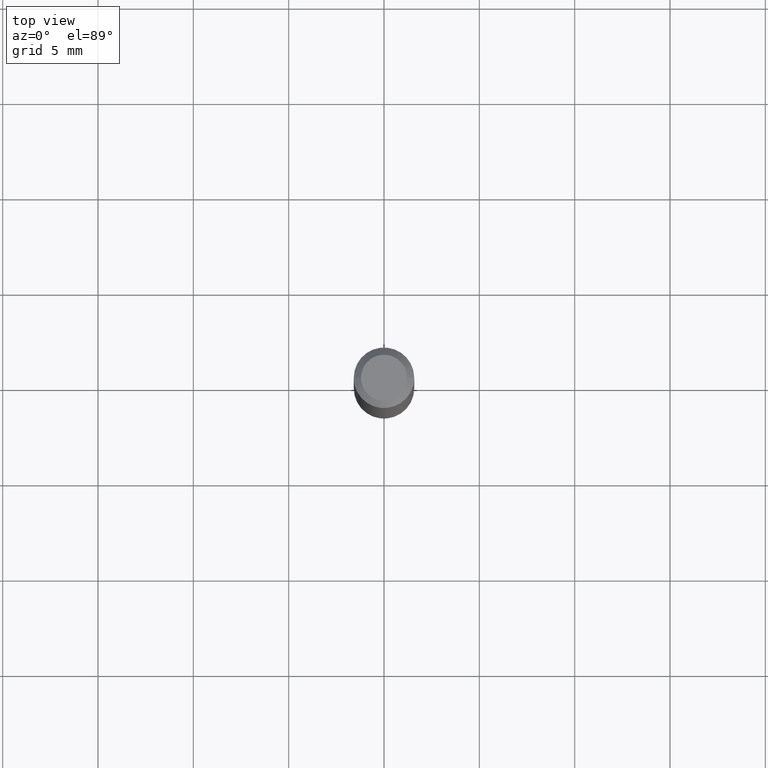
[diagram: clean part render]
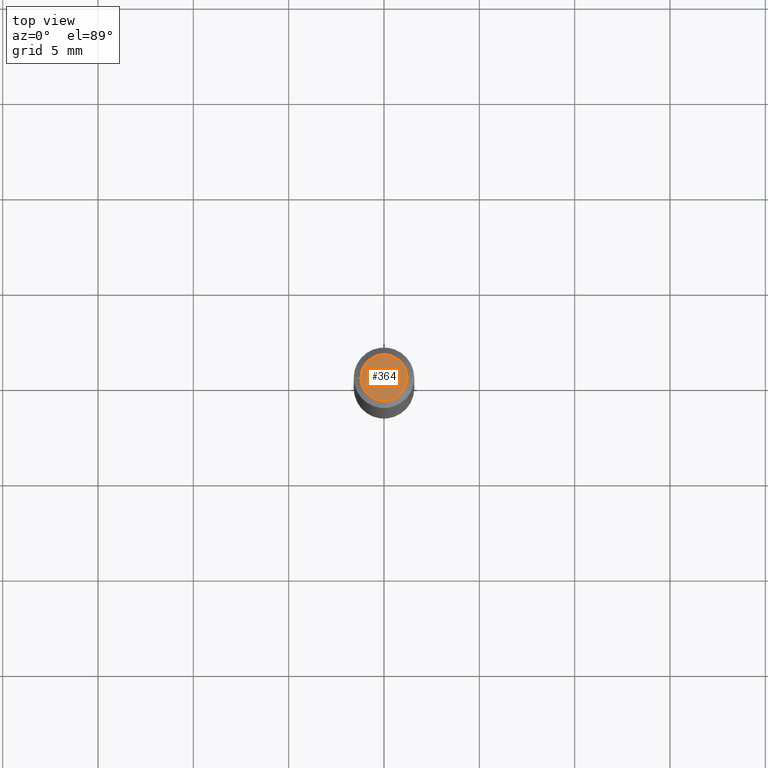
[diagram: same view with one face highlighted and labeled with its STEP entity id]
A machine part, top view. The second image highlights one B-rep face of the part: STEP entity #364.
In plain terms, the highlighted planar face has unit normal (0, -0, -1).
Its self-contained STEP definition (entity closure, byte-faithful):
#20 = DIRECTION ( 'NONE',  ( 1.000000000000000000, -6.982962677686267499E-15, 5.108144071313017768E-29 ) ) ;
#42 = AXIS2_PLACEMENT_3D ( 'NONE', #251, #406, #356 ) ;
#49 = ORIENTED_EDGE ( 'NONE', *, *, #297, .T. ) ;
#83 = ORIENTED_EDGE ( 'NONE', *, *, #177, .T. ) ;
#87 = CIRCLE ( 'NONE', #190, 0.04749999999999999362 ) ;
#114 = DIRECTION ( 'NONE',  ( 2.438088387897960049E-29, -3.491481338843145188E-15, -1.000000000000000000 ) ) ;
#117 = PLANE ( 'NONE',  #405 ) ;
#145 = VERTEX_POINT ( 'NONE', #330 ) ;
#160 = CARTESIAN_POINT ( 'NONE',  ( 3.316907271900976096E-16, 0.04749999999999999362, 5.577130024057243141E-16 ) ) ;
#177 = EDGE_CURVE ( 'NONE', #145, #359, #241, .T. ) ;
#190 = AXIS2_PLACEMENT_3D ( 'NONE', #206, #450, #20 ) ;
#206 = CARTESIAN_POINT ( 'NONE',  ( -3.538878827018360888E-44, 5.052581064911080951E-30, 1.447116732001547520E-15 ) ) ;
#223 = FACE_OUTER_BOUND ( 'NONE', #358, .T. ) ;
#241 = CIRCLE ( 'NONE', #42, 0.04749999999999999362 ) ;
#245 = CARTESIAN_POINT ( 'NONE',  ( -0.04749999999999999362, 3.578768372314235651E-16, 1.447116732001545153E-15 ) ) ;
#251 = CARTESIAN_POINT ( 'NONE',  ( -3.538878827018360888E-44, 5.052581064911080951E-30, 1.447116732001547520E-15 ) ) ;
#297 = EDGE_CURVE ( 'NONE', #359, #145, #87, .T. ) ;
#330 = CARTESIAN_POINT ( 'NONE',  ( 0.04749999999999999362, -4.035134999187553478E-16, 1.447116732001550281E-15 ) ) ;
#356 = DIRECTION ( 'NONE',  ( 1.000000000000000000, -6.982962677686267499E-15, 5.108144071313017768E-29 ) ) ;
#358 = EDGE_LOOP ( 'NONE', ( #49, #83 ) ) ;
#359 = VERTEX_POINT ( 'NONE', #245 ) ;
#364 = ADVANCED_FACE ( 'NONE', ( #223 ), #117, .F. ) ;
#405 = AXIS2_PLACEMENT_3D ( 'NONE', #160, #114, #466 ) ;
#406 = DIRECTION ( 'NONE',  ( -2.445468806185136597E-29, 3.491481338843145583E-15, 1.000000000000000000 ) ) ;
#450 = DIRECTION ( 'NONE',  ( -2.445468806185136597E-29, 3.491481338843145583E-15, 1.000000000000000000 ) ) ;
#466 = DIRECTION ( 'NONE',  ( -1.000000000000000000, 6.982962677686265922E-15, -4.876176775795935793E-29 ) ) ;